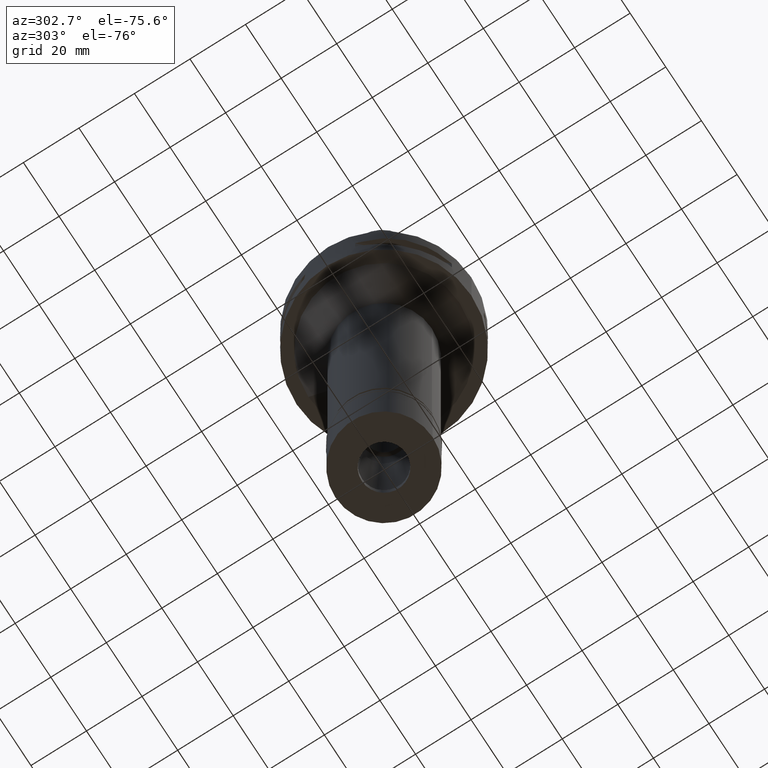
[diagram: clean part render]
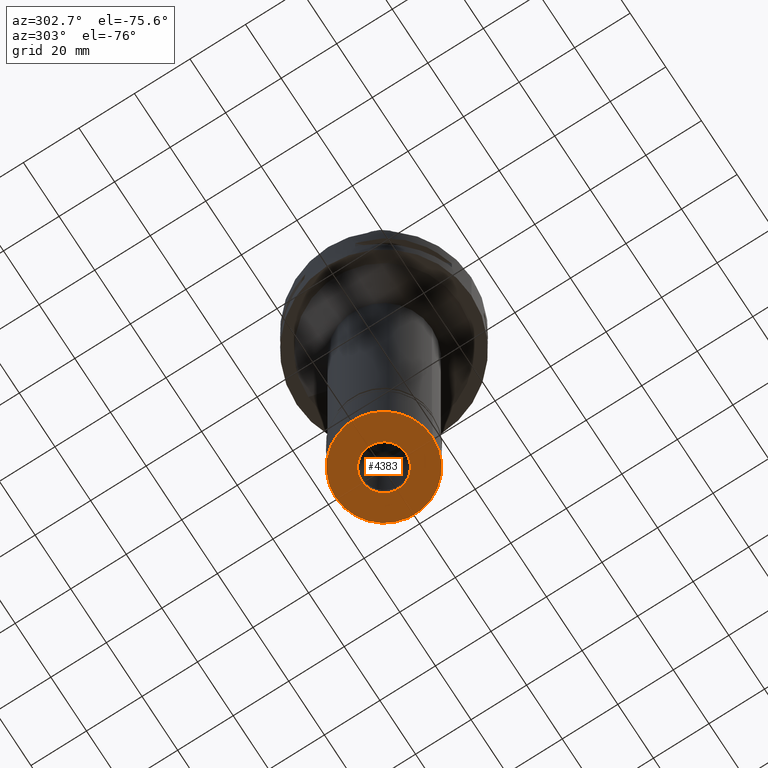
[diagram: same view with one face highlighted and labeled with its STEP entity id]
A machine part, auxiliary view. The second image highlights one B-rep face of the part: STEP entity #4383.
In plain terms, the highlighted planar face has unit normal (0, 0, -1).
Its self-contained STEP definition (entity closure, byte-faithful):
#264 = CARTESIAN_POINT ( 'NONE',  ( 0.0000000000000000000, -17.50000000000000000, -26.70000000000000284 ) ) ;
#330 = AXIS2_PLACEMENT_3D ( 'NONE', #554, #1313, #2867 ) ;
#362 = DIRECTION ( 'NONE',  ( 0.0000000000000000000, 1.000000000000000000, 0.0000000000000000000 ) ) ;
#374 = DIRECTION ( 'NONE',  ( 0.0000000000000000000, -1.000000000000000000, 0.0000000000000000000 ) ) ;
#554 = CARTESIAN_POINT ( 'NONE',  ( 0.0000000000000000000, 0.0000000000000000000, -26.70000000000000284 ) ) ;
#1053 = CARTESIAN_POINT ( 'NONE',  ( 0.0000000000000000000, -8.000000000000000000, -26.70000000000000284 ) ) ;
#1073 = EDGE_LOOP ( 'NONE', ( #1901, #4791 ) ) ;
#1159 = DIRECTION ( 'NONE',  ( 0.0000000000000000000, 0.0000000000000000000, 1.000000000000000000 ) ) ;
#1171 = CIRCLE ( 'NONE', #330, 8.000000000000000000 ) ;
#1233 = CARTESIAN_POINT ( 'NONE',  ( 0.0000000000000000000, 0.0000000000000000000, -26.70000000000000284 ) ) ;
#1313 = DIRECTION ( 'NONE',  ( 0.0000000000000000000, 0.0000000000000000000, -1.000000000000000000 ) ) ;
#1467 = VERTEX_POINT ( 'NONE', #1053 ) ;
#1612 = ORIENTED_EDGE ( 'NONE', *, *, #4788, .F. ) ;
#1784 = AXIS2_PLACEMENT_3D ( 'NONE', #4616, #3829, #362 ) ;
#1901 = ORIENTED_EDGE ( 'NONE', *, *, #4955, .F. ) ;
#1938 = PLANE ( 'NONE',  #3765 ) ;
#2016 = FACE_BOUND ( 'NONE', #3714, .T. ) ;
#2158 = AXIS2_PLACEMENT_3D ( 'NONE', #3045, #1159, #2708 ) ;
#2309 = DIRECTION ( 'NONE',  ( 0.0000000000000000000, -1.000000000000000000, 0.0000000000000000000 ) ) ;
#2439 = ORIENTED_EDGE ( 'NONE', *, *, #2457, .F. ) ;
#2457 = EDGE_CURVE ( 'NONE', #1467, #4312, #3775, .T. ) ;
#2647 = AXIS2_PLACEMENT_3D ( 'NONE', #3412, #4972, #2309 ) ;
#2708 = DIRECTION ( 'NONE',  ( 0.0000000000000000000, -1.000000000000000000, 0.0000000000000000000 ) ) ;
#2858 = EDGE_CURVE ( 'NONE', #3455, #3859, #5016, .T. ) ;
#2867 = DIRECTION ( 'NONE',  ( 0.0000000000000000000, 1.000000000000000000, 0.0000000000000000000 ) ) ;
#3045 = CARTESIAN_POINT ( 'NONE',  ( 0.0000000000000000000, 0.0000000000000000000, -26.70000000000000284 ) ) ;
#3121 = CARTESIAN_POINT ( 'NONE',  ( 0.0000000000000000000, 17.50000000000000000, -26.70000000000000284 ) ) ;
#3166 = FACE_OUTER_BOUND ( 'NONE', #1073, .T. ) ;
#3412 = CARTESIAN_POINT ( 'NONE',  ( 0.0000000000000000000, 0.0000000000000000000, -26.70000000000000284 ) ) ;
#3455 = VERTEX_POINT ( 'NONE', #264 ) ;
#3714 = EDGE_LOOP ( 'NONE', ( #1612, #2439 ) ) ;
#3724 = CARTESIAN_POINT ( 'NONE',  ( 0.0000000000000000000, 8.000000000000000000, -26.70000000000000284 ) ) ;
#3736 = CIRCLE ( 'NONE', #1784, 17.50000000000000000 ) ;
#3765 = AXIS2_PLACEMENT_3D ( 'NONE', #1233, #3843, #374 ) ;
#3775 = CIRCLE ( 'NONE', #2647, 8.000000000000000000 ) ;
#3829 = DIRECTION ( 'NONE',  ( 0.0000000000000000000, 0.0000000000000000000, 1.000000000000000000 ) ) ;
#3843 = DIRECTION ( 'NONE',  ( 0.0000000000000000000, 0.0000000000000000000, -1.000000000000000000 ) ) ;
#3859 = VERTEX_POINT ( 'NONE', #3121 ) ;
#4312 = VERTEX_POINT ( 'NONE', #3724 ) ;
#4383 = ADVANCED_FACE ( 'NONE', ( #3166, #2016 ), #1938, .T. ) ;
#4616 = CARTESIAN_POINT ( 'NONE',  ( 0.0000000000000000000, 0.0000000000000000000, -26.70000000000000284 ) ) ;
#4788 = EDGE_CURVE ( 'NONE', #4312, #1467, #1171, .T. ) ;
#4791 = ORIENTED_EDGE ( 'NONE', *, *, #2858, .F. ) ;
#4955 = EDGE_CURVE ( 'NONE', #3859, #3455, #3736, .T. ) ;
#4972 = DIRECTION ( 'NONE',  ( 0.0000000000000000000, 0.0000000000000000000, -1.000000000000000000 ) ) ;
#5016 = CIRCLE ( 'NONE', #2158, 17.50000000000000000 ) ;